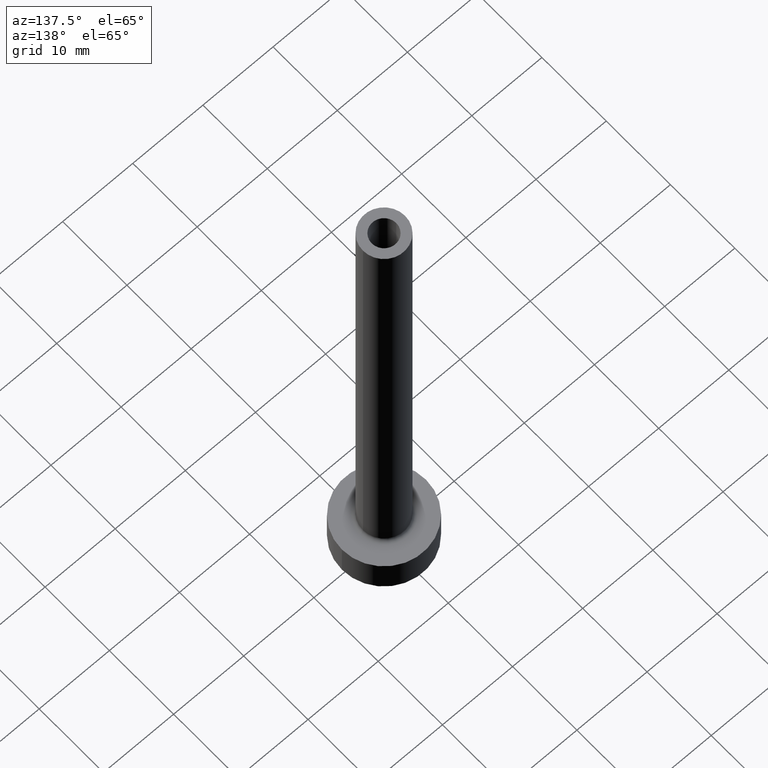
[diagram: clean part render]
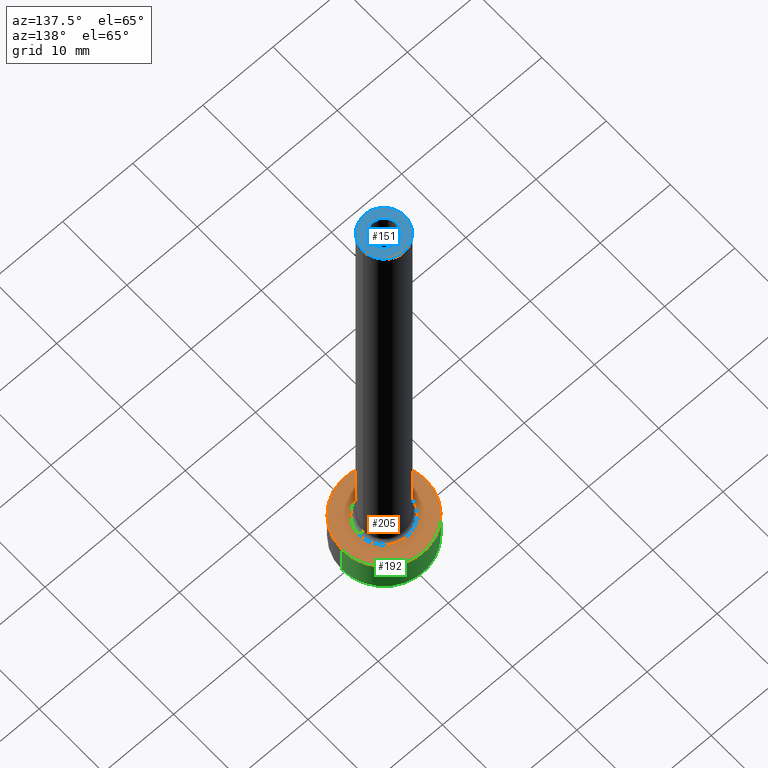
[diagram: same view with three faces highlighted in distinct colors, each labeled with its STEP entity id]
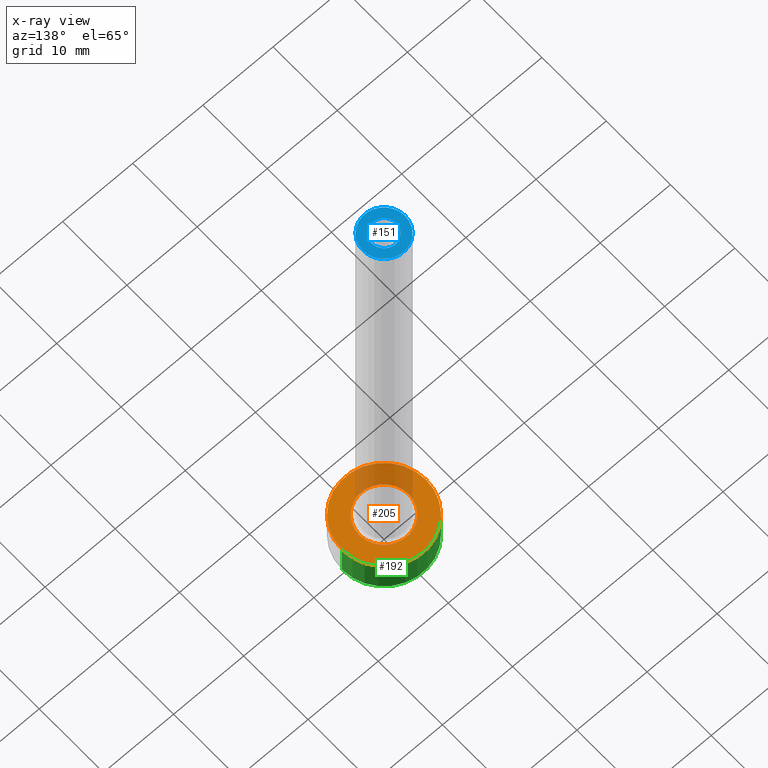
[diagram: x-ray of the same camera — body ghosted, the three highlighted faces saturated]
A machine part, auxiliary view with three faces highlighted in distinct colors.
The next image is the same camera in x-ray (body ghosted, the three faces saturated) — at least one of them is partly hidden behind the body in this view.
Their STEP definitions:

[orange] entity #205 — the highlighted planar face has unit normal (0, 0, 1).
#21 = FACE_OUTER_BOUND ( 'NONE', #421, .T. ) ;
#28 = AXIS2_PLACEMENT_3D ( 'NONE', #170, #96, #174 ) ;
#30 = CARTESIAN_POINT ( 'NONE',  ( 0.000000000000000000, 0.000000000000000000, 5.000000000000000000 ) ) ;
#35 = AXIS2_PLACEMENT_3D ( 'NONE', #390, #382, #379 ) ;
#46 = ORIENTED_EDGE ( 'NONE', *, *, #313, .T. ) ;
#82 = VERTEX_POINT ( 'NONE', #109 ) ;
#93 = CARTESIAN_POINT ( 'NONE',  ( 6.000000000000000888, 7.347880794884120722E-16, 5.000000000000000000 ) ) ;
#96 = DIRECTION ( 'NONE',  ( -0.000000000000000000, -0.000000000000000000, -1.000000000000000000 ) ) ;
#109 = CARTESIAN_POINT ( 'NONE',  ( 3.500000000000000444, 0.000000000000000000, 5.000000000000002665 ) ) ;
#112 = EDGE_LOOP ( 'NONE', ( #46, #335 ) ) ;
#126 = CARTESIAN_POINT ( 'NONE',  ( 0.000000000000000000, 0.000000000000000000, 5.000000000000000000 ) ) ;
#149 = AXIS2_PLACEMENT_3D ( 'NONE', #267, #411, #235 ) ;
#150 = ORIENTED_EDGE ( 'NONE', *, *, #425, .T. ) ;
#156 = AXIS2_PLACEMENT_3D ( 'NONE', #30, #201, #365 ) ;
#167 = PLANE ( 'NONE',  #156 ) ;
#170 = CARTESIAN_POINT ( 'NONE',  ( 0.000000000000000000, 0.000000000000000000, 5.000000000000000000 ) ) ;
#174 = DIRECTION ( 'NONE',  ( 1.000000000000000000, 0.000000000000000000, 0.000000000000000000 ) ) ;
#185 = CIRCLE ( 'NONE', #200, 3.500000000000000444 ) ;
#200 = AXIS2_PLACEMENT_3D ( 'NONE', #126, #452, #265 ) ;
#201 = DIRECTION ( 'NONE',  ( 0.000000000000000000, 0.000000000000000000, 1.000000000000000000 ) ) ;
#202 = ORIENTED_EDGE ( 'NONE', *, *, #442, .T. ) ;
#205 = ADVANCED_FACE ( 'NONE', ( #210, #21 ), #167, .T. ) ;
#210 = FACE_BOUND ( 'NONE', #112, .T. ) ;
#230 = VERTEX_POINT ( 'NONE', #93 ) ;
#234 = CARTESIAN_POINT ( 'NONE',  ( -3.500000000000000444, 4.286263797015737088E-16, 5.000000000000002665 ) ) ;
#235 = DIRECTION ( 'NONE',  ( 1.000000000000000000, 0.000000000000000000, 0.000000000000000000 ) ) ;
#265 = DIRECTION ( 'NONE',  ( 1.000000000000000000, 0.000000000000000000, 0.000000000000000000 ) ) ;
#267 = CARTESIAN_POINT ( 'NONE',  ( 0.000000000000000000, 0.000000000000000000, 5.000000000000000000 ) ) ;
#272 = CIRCLE ( 'NONE', #149, 6.000000000000000888 ) ;
#278 = VERTEX_POINT ( 'NONE', #410 ) ;
#292 = VERTEX_POINT ( 'NONE', #234 ) ;
#299 = CIRCLE ( 'NONE', #35, 6.000000000000000888 ) ;
#313 = EDGE_CURVE ( 'NONE', #82, #292, #347, .T. ) ;
#329 = EDGE_CURVE ( 'NONE', #292, #82, #185, .T. ) ;
#335 = ORIENTED_EDGE ( 'NONE', *, *, #329, .T. ) ;
#347 = CIRCLE ( 'NONE', #28, 3.500000000000000444 ) ;
#365 = DIRECTION ( 'NONE',  ( 1.000000000000000000, 0.000000000000000000, -0.000000000000000000 ) ) ;
#379 = DIRECTION ( 'NONE',  ( 1.000000000000000000, 0.000000000000000000, 0.000000000000000000 ) ) ;
#382 = DIRECTION ( 'NONE',  ( 0.000000000000000000, 0.000000000000000000, 1.000000000000000000 ) ) ;
#390 = CARTESIAN_POINT ( 'NONE',  ( 0.000000000000000000, 0.000000000000000000, 5.000000000000000000 ) ) ;
#410 = CARTESIAN_POINT ( 'NONE',  ( -6.000000000000000888, 0.000000000000000000, 5.000000000000000000 ) ) ;
#411 = DIRECTION ( 'NONE',  ( 0.000000000000000000, 0.000000000000000000, 1.000000000000000000 ) ) ;
#421 = EDGE_LOOP ( 'NONE', ( #150, #202 ) ) ;
#425 = EDGE_CURVE ( 'NONE', #278, #230, #272, .T. ) ;
#442 = EDGE_CURVE ( 'NONE', #230, #278, #299, .T. ) ;
#452 = DIRECTION ( 'NONE',  ( -0.000000000000000000, -0.000000000000000000, -1.000000000000000000 ) ) ;

[blue] entity #151 — the highlighted planar face has unit normal (0, 0, 1).
#14 = VERTEX_POINT ( 'NONE', #420 ) ;
#24 = CIRCLE ( 'NONE', #383, 3.000000000000000444 ) ;
#32 = AXIS2_PLACEMENT_3D ( 'NONE', #294, #363, #332 ) ;
#34 = CIRCLE ( 'NONE', #293, 3.000000000000000444 ) ;
#51 = ORIENTED_EDGE ( 'NONE', *, *, #94, .F. ) ;
#67 = ORIENTED_EDGE ( 'NONE', *, *, #71, .T. ) ;
#70 = AXIS2_PLACEMENT_3D ( 'NONE', #413, #91, #417 ) ;
#71 = EDGE_CURVE ( 'NONE', #222, #14, #24, .T. ) ;
#72 = CARTESIAN_POINT ( 'NONE',  ( 0.000000000000000000, 0.000000000000000000, 75.00000000000001421 ) ) ;
#89 = ORIENTED_EDGE ( 'NONE', *, *, #285, .F. ) ;
#91 = DIRECTION ( 'NONE',  ( 0.000000000000000000, 0.000000000000000000, 1.000000000000000000 ) ) ;
#94 = EDGE_CURVE ( 'NONE', #147, #407, #283, .T. ) ;
#121 = EDGE_LOOP ( 'NONE', ( #51, #89 ) ) ;
#129 = ORIENTED_EDGE ( 'NONE', *, *, #198, .T. ) ;
#147 = VERTEX_POINT ( 'NONE', #350 ) ;
#151 = ADVANCED_FACE ( 'NONE', ( #440, #244 ), #387, .T. ) ;
#155 = CARTESIAN_POINT ( 'NONE',  ( 0.000000000000000000, 0.000000000000000000, 75.00000000000001421 ) ) ;
#182 = DIRECTION ( 'NONE',  ( 1.000000000000000000, 0.000000000000000000, -0.000000000000000000 ) ) ;
#184 = CIRCLE ( 'NONE', #70, 1.750000000000000000 ) ;
#198 = EDGE_CURVE ( 'NONE', #14, #222, #34, .T. ) ;
#207 = CARTESIAN_POINT ( 'NONE',  ( -3.000000000000000444, 0.000000000000000000, 75.00000000000001421 ) ) ;
#222 = VERTEX_POINT ( 'NONE', #207 ) ;
#226 = EDGE_LOOP ( 'NONE', ( #67, #129 ) ) ;
#227 = DIRECTION ( 'NONE',  ( 1.000000000000000000, 0.000000000000000000, 0.000000000000000000 ) ) ;
#228 = DIRECTION ( 'NONE',  ( 0.000000000000000000, 0.000000000000000000, 1.000000000000000000 ) ) ;
#238 = DIRECTION ( 'NONE',  ( 1.000000000000000000, 0.000000000000000000, 0.000000000000000000 ) ) ;
#244 = FACE_OUTER_BOUND ( 'NONE', #226, .T. ) ;
#264 = CARTESIAN_POINT ( 'NONE',  ( 0.000000000000000000, 0.000000000000000000, 75.00000000000001421 ) ) ;
#283 = CIRCLE ( 'NONE', #32, 1.750000000000000000 ) ;
#285 = EDGE_CURVE ( 'NONE', #407, #147, #184, .T. ) ;
#293 = AXIS2_PLACEMENT_3D ( 'NONE', #264, #228, #238 ) ;
#294 = CARTESIAN_POINT ( 'NONE',  ( 0.000000000000000000, 0.000000000000000000, 75.00000000000001421 ) ) ;
#332 = DIRECTION ( 'NONE',  ( 1.000000000000000000, 0.000000000000000000, 0.000000000000000000 ) ) ;
#350 = CARTESIAN_POINT ( 'NONE',  ( -1.750000000000000000, 0.000000000000000000, 75.00000000000001421 ) ) ;
#363 = DIRECTION ( 'NONE',  ( 0.000000000000000000, 0.000000000000000000, 1.000000000000000000 ) ) ;
#383 = AXIS2_PLACEMENT_3D ( 'NONE', #155, #459, #227 ) ;
#387 = PLANE ( 'NONE',  #455 ) ;
#407 = VERTEX_POINT ( 'NONE', #445 ) ;
#413 = CARTESIAN_POINT ( 'NONE',  ( 0.000000000000000000, 0.000000000000000000, 75.00000000000001421 ) ) ;
#417 = DIRECTION ( 'NONE',  ( 1.000000000000000000, 0.000000000000000000, 0.000000000000000000 ) ) ;
#420 = CARTESIAN_POINT ( 'NONE',  ( 3.000000000000000444, 3.673940397442060361E-16, 75.00000000000001421 ) ) ;
#436 = DIRECTION ( 'NONE',  ( 0.000000000000000000, 0.000000000000000000, 1.000000000000000000 ) ) ;
#440 = FACE_BOUND ( 'NONE', #121, .T. ) ;
#445 = CARTESIAN_POINT ( 'NONE',  ( 1.750000000000000000, 2.143131898507867804E-16, 75.00000000000001421 ) ) ;
#455 = AXIS2_PLACEMENT_3D ( 'NONE', #72, #436, #182 ) ;
#459 = DIRECTION ( 'NONE',  ( 0.000000000000000000, 0.000000000000000000, 1.000000000000000000 ) ) ;

[green] entity #192 — the highlighted cylindrical surface (partial cylindrical patch) has radius 6 mm, axis along (-0, -0, -1).
#8 = VECTOR ( 'NONE', #162, 1000.000000000000000 ) ;
#13 = LINE ( 'NONE', #39, #208 ) ;
#25 = CIRCLE ( 'NONE', #284, 6.000000000000000888 ) ;
#33 = EDGE_CURVE ( 'NONE', #136, #259, #25, .T. ) ;
#35 = AXIS2_PLACEMENT_3D ( 'NONE', #390, #382, #379 ) ;
#39 = CARTESIAN_POINT ( 'NONE',  ( -6.000000000000000888, 0.000000000000000000, 5.000000000000000000 ) ) ;
#50 = DIRECTION ( 'NONE',  ( -0.000000000000000000, -0.000000000000000000, -1.000000000000000000 ) ) ;
#61 = DIRECTION ( 'NONE',  ( 1.000000000000000000, 0.000000000000000000, 0.000000000000000000 ) ) ;
#66 = EDGE_CURVE ( 'NONE', #230, #136, #90, .T. ) ;
#86 = CYLINDRICAL_SURFACE ( 'NONE', #341, 6.000000000000000888 ) ;
#90 = LINE ( 'NONE', #190, #8 ) ;
#93 = CARTESIAN_POINT ( 'NONE',  ( 6.000000000000000888, 7.347880794884120722E-16, 5.000000000000000000 ) ) ;
#113 = ORIENTED_EDGE ( 'NONE', *, *, #33, .T. ) ;
#117 = ORIENTED_EDGE ( 'NONE', *, *, #442, .F. ) ;
#136 = VERTEX_POINT ( 'NONE', #434 ) ;
#144 = EDGE_CURVE ( 'NONE', #278, #259, #13, .T. ) ;
#160 = FACE_OUTER_BOUND ( 'NONE', #183, .T. ) ;
#162 = DIRECTION ( 'NONE',  ( -0.000000000000000000, -0.000000000000000000, -1.000000000000000000 ) ) ;
#166 = ORIENTED_EDGE ( 'NONE', *, *, #66, .T. ) ;
#183 = EDGE_LOOP ( 'NONE', ( #117, #166, #113, #461 ) ) ;
#190 = CARTESIAN_POINT ( 'NONE',  ( 6.000000000000000888, 7.347880794884120722E-16, 5.000000000000000000 ) ) ;
#192 = ADVANCED_FACE ( 'NONE', ( #160 ), #86, .T. ) ;
#193 = DIRECTION ( 'NONE',  ( -1.000000000000000000, 0.000000000000000000, 0.000000000000000000 ) ) ;
#208 = VECTOR ( 'NONE', #298, 1000.000000000000000 ) ;
#224 = CARTESIAN_POINT ( 'NONE',  ( 0.000000000000000000, 0.000000000000000000, 5.000000000000000000 ) ) ;
#230 = VERTEX_POINT ( 'NONE', #93 ) ;
#259 = VERTEX_POINT ( 'NONE', #405 ) ;
#277 = CARTESIAN_POINT ( 'NONE',  ( 0.000000000000000000, 0.000000000000000000, 0.000000000000000000 ) ) ;
#278 = VERTEX_POINT ( 'NONE', #410 ) ;
#284 = AXIS2_PLACEMENT_3D ( 'NONE', #277, #306, #61 ) ;
#298 = DIRECTION ( 'NONE',  ( -0.000000000000000000, -0.000000000000000000, -1.000000000000000000 ) ) ;
#299 = CIRCLE ( 'NONE', #35, 6.000000000000000888 ) ;
#306 = DIRECTION ( 'NONE',  ( 0.000000000000000000, 0.000000000000000000, 1.000000000000000000 ) ) ;
#341 = AXIS2_PLACEMENT_3D ( 'NONE', #224, #50, #193 ) ;
#379 = DIRECTION ( 'NONE',  ( 1.000000000000000000, 0.000000000000000000, 0.000000000000000000 ) ) ;
#382 = DIRECTION ( 'NONE',  ( 0.000000000000000000, 0.000000000000000000, 1.000000000000000000 ) ) ;
#390 = CARTESIAN_POINT ( 'NONE',  ( 0.000000000000000000, 0.000000000000000000, 5.000000000000000000 ) ) ;
#405 = CARTESIAN_POINT ( 'NONE',  ( -6.000000000000000888, 0.000000000000000000, 0.000000000000000000 ) ) ;
#410 = CARTESIAN_POINT ( 'NONE',  ( -6.000000000000000888, 0.000000000000000000, 5.000000000000000000 ) ) ;
#434 = CARTESIAN_POINT ( 'NONE',  ( 6.000000000000000888, 7.347880794884120722E-16, 0.000000000000000000 ) ) ;
#442 = EDGE_CURVE ( 'NONE', #230, #278, #299, .T. ) ;
#461 = ORIENTED_EDGE ( 'NONE', *, *, #144, .F. ) ;